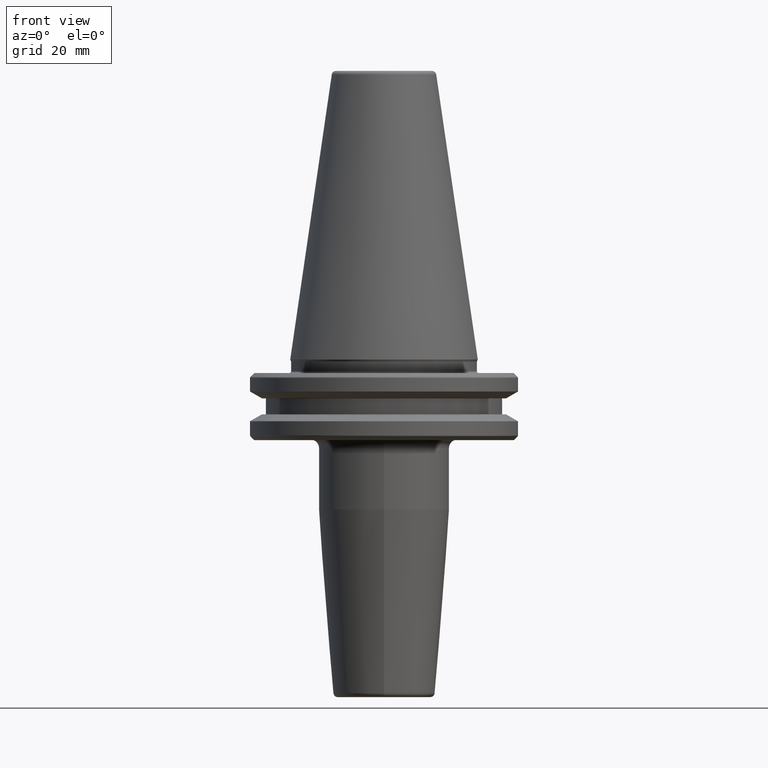
[diagram: clean part render]
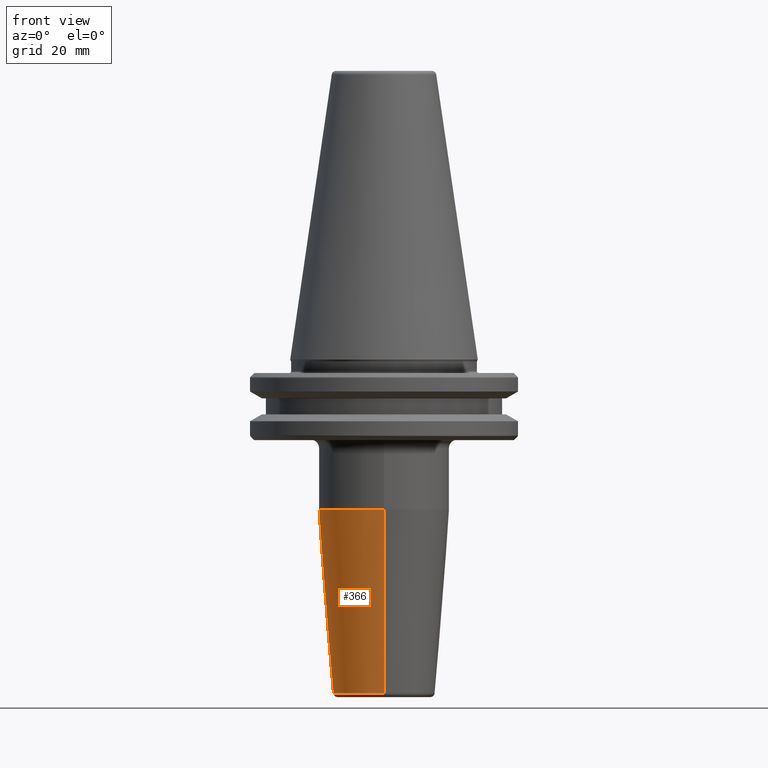
[diagram: same view with one face highlighted and labeled with its STEP entity id]
A machine part, front view. The second image highlights one B-rep face of the part: STEP entity #366.
In plain terms, the highlighted conical surface has half-angle 4.5 deg.
Its self-contained STEP definition (entity closure, byte-faithful):
#6 = ORIENTED_EDGE ( 'NONE', *, *, #237, .F. ) ;
#97 = LINE ( 'NONE', #953, #962 ) ;
#140 = VERTEX_POINT ( 'NONE', #1106 ) ;
#176 = FACE_OUTER_BOUND ( 'NONE', #183, .T. ) ;
#183 = EDGE_LOOP ( 'NONE', ( #6, #215, #935, #786 ) ) ;
#215 = ORIENTED_EDGE ( 'NONE', *, *, #657, .F. ) ;
#222 = VERTEX_POINT ( 'NONE', #265 ) ;
#237 = EDGE_CURVE ( 'NONE', #222, #846, #97, .T. ) ;
#265 = CARTESIAN_POINT ( 'NONE',  ( 0.0000000000000000000, 12.07252684207492000, -79.07845909572785100 ) ) ;
#278 = EDGE_CURVE ( 'NONE', #140, #1059, #967, .T. ) ;
#282 = CARTESIAN_POINT ( 'NONE',  ( 0.0000000000000000000, -1.258863725177652500E-014, -35.52828342338864300 ) ) ;
#353 = DIRECTION ( 'NONE',  ( 9.608468044710167400E-018, 0.07845909572784513800, 0.9969173337331278500 ) ) ;
#366 = ADVANCED_FACE ( 'NONE', ( #176 ), #660, .T. ) ;
#392 = DIRECTION ( 'NONE',  ( 0.0000000000000000000, 1.000000000000000000, 4.476705744456272400E-016 ) ) ;
#399 = AXIS2_PLACEMENT_3D ( 'NONE', #512, #612, #790 ) ;
#414 = DIRECTION ( 'NONE',  ( 0.0000000000000000000, -1.000000000000000000, 0.0000000000000000000 ) ) ;
#512 = CARTESIAN_POINT ( 'NONE',  ( 0.0000000000000000000, -2.675592333722434000E-016, -79.07845909572785100 ) ) ;
#601 = DIRECTION ( 'NONE',  ( 0.0000000000000000000, -0.07845909572784569300, 0.9969173337331278500 ) ) ;
#612 = DIRECTION ( 'NONE',  ( -0.0000000000000000000, 2.829168385244881300E-016, -1.000000000000000000 ) ) ;
#657 = EDGE_CURVE ( 'NONE', #140, #222, #977, .T. ) ;
#660 = CONICAL_SURFACE ( 'NONE', #1029, 12.07252684207492000, 0.07853981633974531400 ) ;
#669 = CARTESIAN_POINT ( 'NONE',  ( 1.898202538678398700E-015, 15.50000000000000000, -35.52828342338864300 ) ) ;
#692 = VECTOR ( 'NONE', #601, 1000.000000000000100 ) ;
#786 = ORIENTED_EDGE ( 'NONE', *, *, #938, .T. ) ;
#790 = DIRECTION ( 'NONE',  ( 0.0000000000000000000, 1.000000000000000000, 0.0000000000000000000 ) ) ;
#846 = VERTEX_POINT ( 'NONE', #669 ) ;
#886 = CARTESIAN_POINT ( 'NONE',  ( 0.0000000000000000000, -2.675592333722434000E-016, -79.07845909572785100 ) ) ;
#935 = ORIENTED_EDGE ( 'NONE', *, *, #278, .T. ) ;
#938 = EDGE_CURVE ( 'NONE', #1059, #846, #1217, .T. ) ;
#953 = CARTESIAN_POINT ( 'NONE',  ( 1.478458135476755500E-015, 12.07252684207492000, -79.07845909572785100 ) ) ;
#962 = VECTOR ( 'NONE', #353, 1000.000000000000100 ) ;
#967 = LINE ( 'NONE', #1261, #692 ) ;
#977 = CIRCLE ( 'NONE', #399, 12.07252684207492000 ) ;
#984 = DIRECTION ( 'NONE',  ( -0.0000000000000000000, 2.829168385244881300E-016, -1.000000000000000000 ) ) ;
#1004 = DIRECTION ( 'NONE',  ( 0.0000000000000000000, -2.829168385244881300E-016, 1.000000000000000000 ) ) ;
#1009 = AXIS2_PLACEMENT_3D ( 'NONE', #282, #984, #392 ) ;
#1029 = AXIS2_PLACEMENT_3D ( 'NONE', #886, #1004, #414 ) ;
#1030 = CARTESIAN_POINT ( 'NONE',  ( 0.0000000000000000000, -15.50000000000002500, -35.52828342338864300 ) ) ;
#1059 = VERTEX_POINT ( 'NONE', #1030 ) ;
#1106 = CARTESIAN_POINT ( 'NONE',  ( 1.478458135476755500E-015, -12.07252684207492000, -79.07845909572785100 ) ) ;
#1217 = CIRCLE ( 'NONE', #1009, 15.50000000000001200 ) ;
#1261 = CARTESIAN_POINT ( 'NONE',  ( 0.0000000000000000000, -12.07252684207492000, -79.07845909572785100 ) ) ;